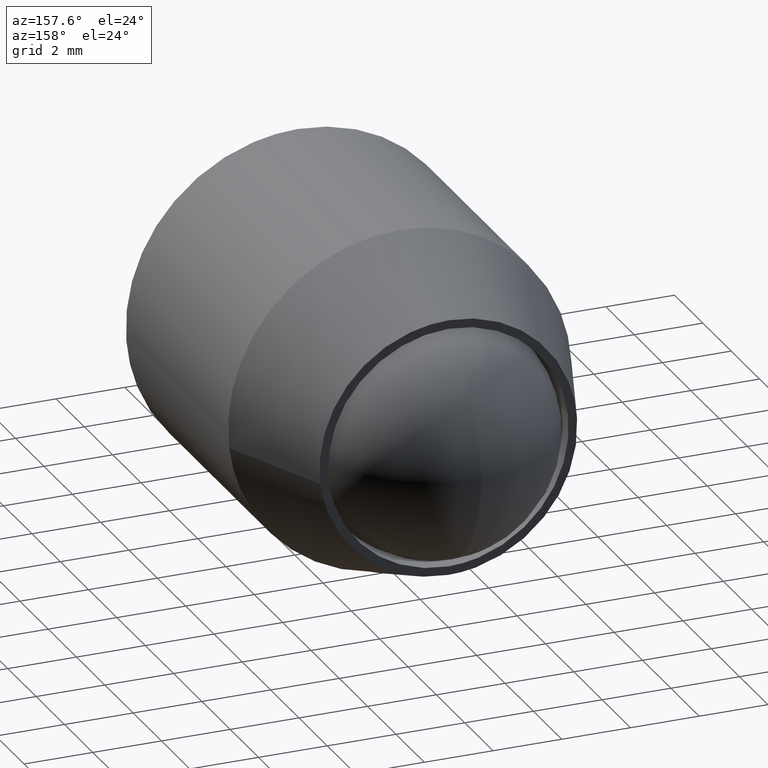
[diagram: clean part render]
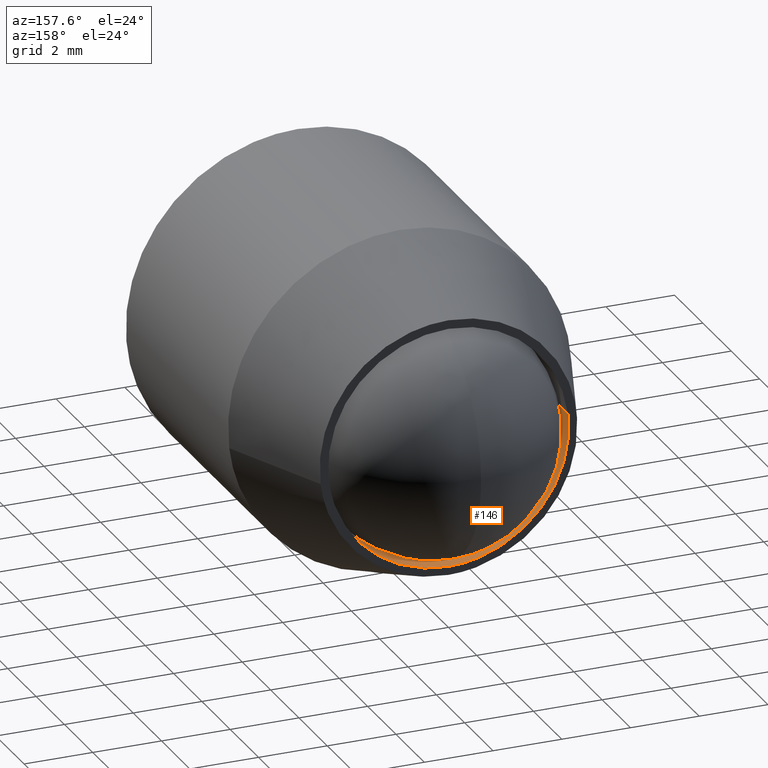
[diagram: same view with one face highlighted and labeled with its STEP entity id]
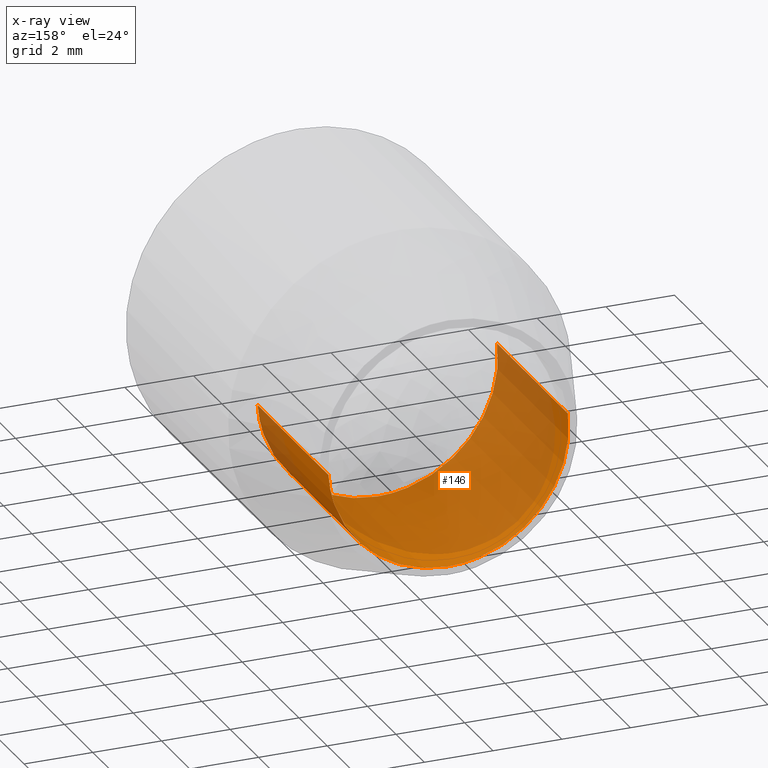
[diagram: x-ray of the same camera — body ghosted, the highlighted face saturated]
A machine part, auxiliary view. The second image highlights one B-rep face of the part: STEP entity #146.
The next image is the same camera in x-ray: the body ghosted, the highlighted face saturated — about 80% of this face is hidden behind the body in this view.
In plain terms, the highlighted face is a freeform B-spline surface patch.
Its self-contained STEP definition (entity closure, byte-faithful):
#44=CARTESIAN_POINT('',(-3.475533342272832,0.125000000000000,0.413119821298655));
#45=CARTESIAN_POINT('',(-3.487356654070120,0.125000000000000,0.313651550232922));
#46=CARTESIAN_POINT('',(-3.493471794476533,0.125000000000000,0.213669888371999));
#47=CARTESIAN_POINT('',(-3.707141682848533,0.125000000000000,-3.279801906104533));
#48=CARTESIAN_POINT('',(-0.213669888371999,0.125000000000000,-3.493471794476533));
#49=CARTESIAN_POINT('',(3.279801906104533,0.125000000000000,-3.707141682848533));
#50=CARTESIAN_POINT('',(3.493471794476533,0.125000000000000,-0.213669888371999));
#51=CARTESIAN_POINT('',(-3.475533342272832,-5.128125000000002,0.413119821298655));
#52=CARTESIAN_POINT('',(-3.487356654070120,-5.128125000000001,0.313651550232922));
#53=CARTESIAN_POINT('',(-3.493471794476533,-5.128125000000001,0.213669888371999));
#54=CARTESIAN_POINT('',(-3.707141682848533,-5.128125000000001,-3.279801906104533));
#55=CARTESIAN_POINT('',(-0.213669888371999,-5.128125000000001,-3.493471794476533));
#56=CARTESIAN_POINT('',(3.279801906104533,-5.128125000000001,-3.707141682848533));
#57=CARTESIAN_POINT('',(3.493471794476533,-5.128125000000001,-0.213669888371999));
#65=(BOUNDED_SURFACE()B_SPLINE_SURFACE(2,1,((#44,#51),(#45,#52),(#46,#53),(#47,#54),(#48,#55),(#49,#56),(#50,#57)),.UNSPECIFIED.,.F.,.F.,.U.)B_SPLINE_SURFACE_WITH_KNOTS((3,2,2,3),(2,2),(0.0,0.231959594928934,6.030949468152262,11.829939341375590),(0.0,5.253125000000002),.UNSPECIFIED.)GEOMETRIC_REPRESENTATION_ITEM()RATIONAL_B_SPLINE_SURFACE(((0.977505800795127,0.977505800795127),(0.988284271247462,0.988284271247462),(1.0,1.0),(0.707106781186548,0.707106781186548),(1.0,1.0),(0.707106781186548,0.707106781186548),(1.0,1.0)))REPRESENTATION_ITEM('')SURFACE());
#66=CARTESIAN_POINT('',(-3.475533787910202,-4.999999999999991,0.413116072164112));
#67=VERTEX_POINT('',#66);
#68=CARTESIAN_POINT('',(0.0,-5.0,-3.500000000000000));
#69=VERTEX_POINT('',#68);
#70=CARTESIAN_POINT('',(-3.475533787910203,-4.999999999999991,0.413116072164112));
#71=CARTESIAN_POINT('',(-3.500000000000000,-5.0,0.207282524397032));
#72=CARTESIAN_POINT('',(-3.500000000000000,-5.0,0.0));
#73=CARTESIAN_POINT('',(-3.500000000000000,-4.999999999999999,-3.500000000000000));
#74=CARTESIAN_POINT('',(0.0,-5.0,-3.500000000000000));
#82=(BOUNDED_CURVE()B_SPLINE_CURVE(2,(#70,#71,#72,#73,#74),.UNSPECIFIED.,.F.,.U.)B_SPLINE_CURVE_WITH_KNOTS((3,2,3),(0.229562655823192,0.250000000000000,0.500000000000000),.UNSPECIFIED.)CURVE()GEOMETRIC_REPRESENTATION_ITEM()RATIONAL_B_SPLINE_CURVE((0.956027111518451,0.976056161920225,1.0,0.707106781186547,1.0))REPRESENTATION_ITEM(''));
#83=EDGE_CURVE('',#67,#69,#82,.T.);
#84=ORIENTED_EDGE('',*,*,#83,.T.);
#85=CARTESIAN_POINT('',(3.493472062745797,-5.000000000000002,-0.213665502117946));
#86=VERTEX_POINT('',#85);
#87=CARTESIAN_POINT('',(0.0,-5.0,-3.500000000000000));
#88=CARTESIAN_POINT('',(3.292475375783329,-5.000000000000001,-3.499999999999999));
#89=CARTESIAN_POINT('',(3.493472062745797,-5.000000000000002,-0.213665502117946));
#97=(BOUNDED_CURVE()B_SPLINE_CURVE(2,(#87,#88,#89),.UNSPECIFIED.,.F.,.U.)B_SPLINE_CURVE_WITH_KNOTS((3,3),(0.500000000000000,0.739333178884387),.UNSPECIFIED.)CURVE()GEOMETRIC_REPRESENTATION_ITEM()RATIONAL_B_SPLINE_CURVE((1.0,0.719603739470784,0.976072505979584))REPRESENTATION_ITEM(''));
#98=EDGE_CURVE('',#69,#86,#97,.T.);
#99=ORIENTED_EDGE('',*,*,#98,.T.);
#100=CARTESIAN_POINT('',(3.493472059435628,-1.110223E-016,-0.213665556240952));
#101=VERTEX_POINT('',#100);
#102=CARTESIAN_POINT('',(3.493472059435628,-1.110223E-016,-0.213665556240952));
#103=CARTESIAN_POINT('',(3.493472062745797,-5.000000000000002,-0.213665502117946));
#104=QUASI_UNIFORM_CURVE('',1,(#102,#103),.UNSPECIFIED.,.F.,.U.);
#105=EDGE_CURVE('',#101,#86,#104,.T.);
#106=ORIENTED_EDGE('',*,*,#105,.F.);
#107=CARTESIAN_POINT('',(0.0,0.0,-3.500000000000000));
#108=VERTEX_POINT('',#107);
#109=CARTESIAN_POINT('',(0.0,0.0,-3.500000000000000));
#110=CARTESIAN_POINT('',(3.292475324678975,0.0,-3.500000000000000));
#111=CARTESIAN_POINT('',(3.493472059435628,-1.110223E-016,-0.213665556240953));
#119=(BOUNDED_CURVE()B_SPLINE_CURVE(2,(#109,#110,#111),.UNSPECIFIED.,.F.,.U.)B_SPLINE_CURVE_WITH_KNOTS((3,3),(0.500000000000000,0.739333176211185),.UNSPECIFIED.)CURVE()GEOMETRIC_REPRESENTATION_ITEM()RATIONAL_B_SPLINE_CURVE((1.0,0.719603742602635,0.976072500250393))REPRESENTATION_ITEM(''));
#120=EDGE_CURVE('',#108,#101,#119,.T.);
#121=ORIENTED_EDGE('',*,*,#120,.F.);
#122=CARTESIAN_POINT('',(-3.475533782414077,-1.135771E-016,0.413116118403281));
#123=VERTEX_POINT('',#122);
#124=CARTESIAN_POINT('',(-3.475533782414076,-1.135771E-016,0.413116118403281));
#125=CARTESIAN_POINT('',(-3.500000000000000,0.0,0.207282547761025));
#126=CARTESIAN_POINT('',(-3.500000000000000,0.0,0.0));
#127=CARTESIAN_POINT('',(-3.500000000000000,0.0,-3.500000000000000));
#128=CARTESIAN_POINT('',(0.0,0.0,-3.500000000000000));
#136=(BOUNDED_CURVE()B_SPLINE_CURVE(2,(#124,#125,#126,#127,#128),.UNSPECIFIED.,.F.,.U.)B_SPLINE_CURVE_WITH_KNOTS((3,2,3),(0.229562653574740,0.250000000000000,0.500000000000000),.UNSPECIFIED.)CURVE()GEOMETRIC_REPRESENTATION_ITEM()RATIONAL_B_SPLINE_CURVE((0.956027107111385,0.976056159286000,1.0,0.707106781186547,1.0))REPRESENTATION_ITEM(''));
#137=EDGE_CURVE('',#123,#108,#136,.T.);
#138=ORIENTED_EDGE('',*,*,#137,.F.);
#139=CARTESIAN_POINT('',(-3.475533782414077,-1.135771E-016,0.413116118403281));
#140=CARTESIAN_POINT('',(-3.475533787910202,-4.999999999999991,0.413116072164112));
#141=QUASI_UNIFORM_CURVE('',1,(#139,#140),.UNSPECIFIED.,.F.,.U.);
#142=EDGE_CURVE('',#123,#67,#141,.T.);
#143=ORIENTED_EDGE('',*,*,#142,.T.);
#144=EDGE_LOOP('',(#84,#99,#106,#121,#138,#143));
#145=FACE_OUTER_BOUND('',#144,.T.);
#146=ADVANCED_FACE('',(#145),#65,.F.);